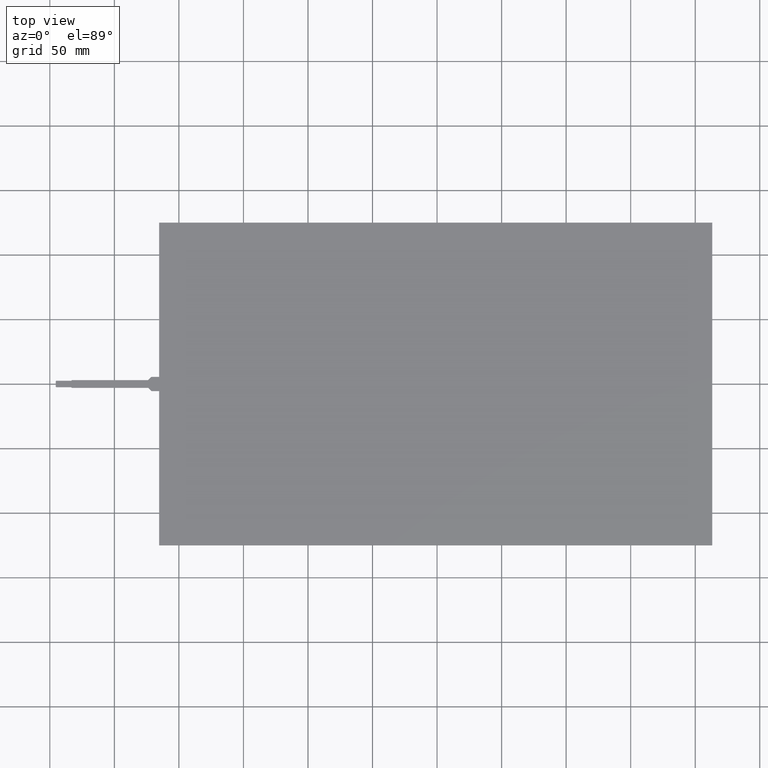
[diagram: clean part render]
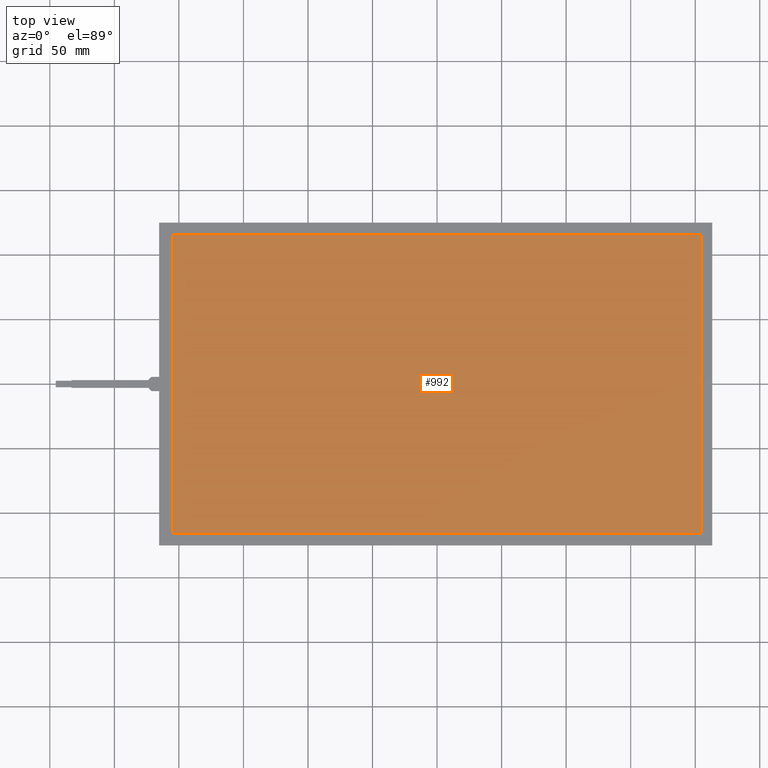
[diagram: same view with one face highlighted and labeled with its STEP entity id]
A machine part, top view. The second image highlights one B-rep face of the part: STEP entity #992.
In plain terms, the highlighted planar face has unit normal (0, 0, 1).
Its self-contained STEP definition (entity closure, byte-faithful):
#82=FACE_OUTER_BOUND('',#136,.T.);
#136=EDGE_LOOP('',(#720,#721,#722,#723));
#174=LINE('',#1375,#300);
#178=LINE('',#1383,#304);
#181=LINE('',#1389,#307);
#184=LINE('',#1394,#310);
#300=VECTOR('',#1119,10.);
#304=VECTOR('',#1125,10.);
#307=VECTOR('',#1130,10.);
#310=VECTOR('',#1135,10.);
#426=VERTEX_POINT('',#1373);
#427=VERTEX_POINT('',#1374);
#430=VERTEX_POINT('',#1382);
#432=VERTEX_POINT('',#1388);
#518=EDGE_CURVE('',#426,#427,#174,.T.);
#522=EDGE_CURVE('',#430,#426,#178,.T.);
#525=EDGE_CURVE('',#432,#430,#181,.T.);
#528=EDGE_CURVE('',#427,#432,#184,.T.);
#720=ORIENTED_EDGE('',*,*,#518,.T.);
#721=ORIENTED_EDGE('',*,*,#528,.T.);
#722=ORIENTED_EDGE('',*,*,#525,.T.);
#723=ORIENTED_EDGE('',*,*,#522,.T.);
#946=PLANE('',#1065);
#992=ADVANCED_FACE('',(#82),#946,.T.);
#1065=AXIS2_PLACEMENT_3D('',#1446,#1181,#1182);
#1119=DIRECTION('',(1.,0.,0.));
#1125=DIRECTION('',(0.,-1.,0.));
#1130=DIRECTION('',(-1.,0.,0.));
#1135=DIRECTION('',(0.,1.,0.));
#1181=DIRECTION('center_axis',(0.,0.,1.));
#1182=DIRECTION('ref_axis',(1.,0.,0.));
#1373=CARTESIAN_POINT('',(-205.15,-115.45,0.));
#1374=CARTESIAN_POINT('',(205.15,-115.45,0.));
#1375=CARTESIAN_POINT('',(-103.125,-115.45,0.));
#1382=CARTESIAN_POINT('',(-205.15,115.45,0.));
#1383=CARTESIAN_POINT('',(-205.15,57.725,0.));
#1388=CARTESIAN_POINT('',(205.15,115.45,0.));
#1389=CARTESIAN_POINT('',(102.025,115.45,0.));
#1394=CARTESIAN_POINT('',(205.15,-57.725,0.));
#1446=CARTESIAN_POINT('Origin',(-1.10000000000001,1.77635683940025E-14,
0.));